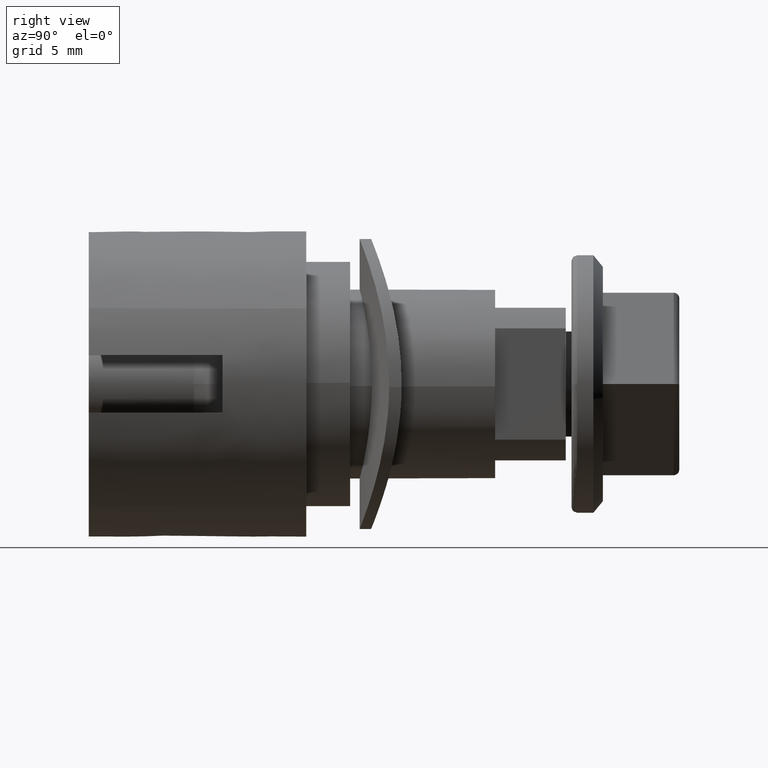
[diagram: clean part render]
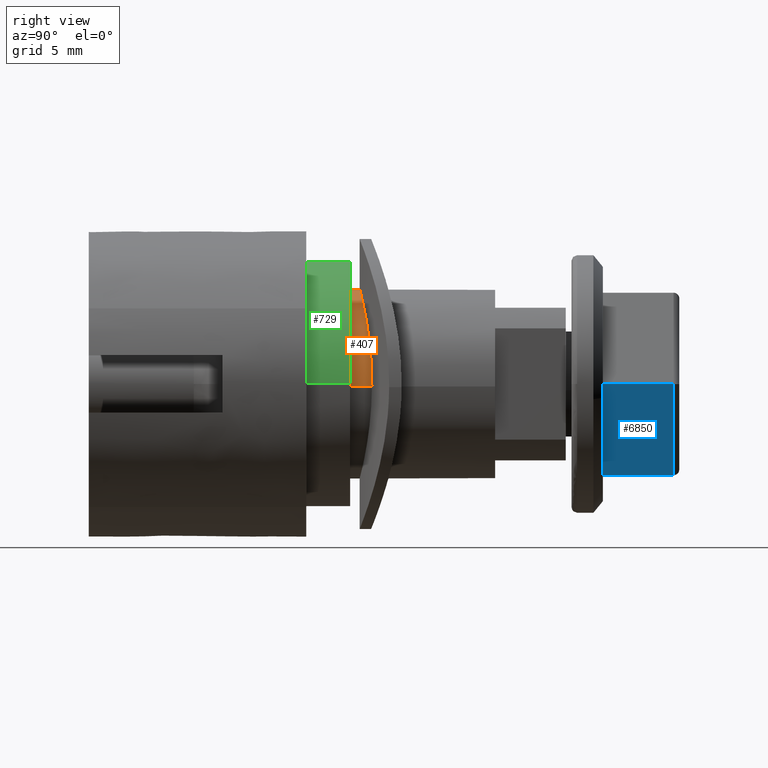
[diagram: same view with three faces highlighted in distinct colors, each labeled with its STEP entity id]
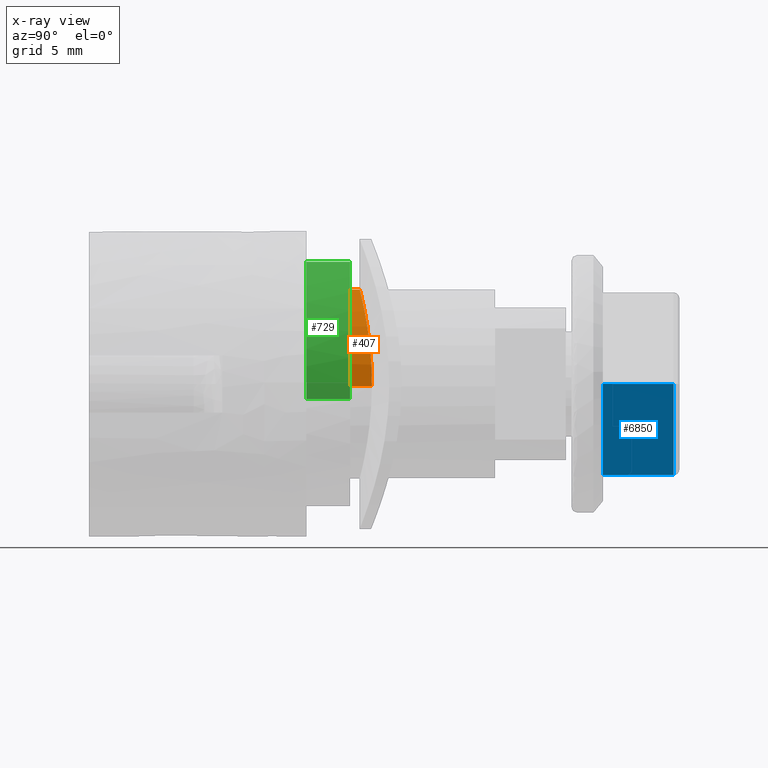
[diagram: x-ray of the same camera — body ghosted, the three highlighted faces saturated]
A machine part, right view with three faces highlighted in distinct colors.
The next image is the same camera in x-ray (body ghosted, the three faces saturated) — at least one of them is partly hidden behind the body in this view.
Their STEP definitions:

[orange] entity #407 — the highlighted face is a freeform B-spline surface patch.
#258=CARTESIAN_POINT('',(4.947387771196677,7.868939549934340,-0.175296875665200));
#259=CARTESIAN_POINT('',(4.948129703315320,7.868939549934340,-0.140496282237373));
#260=CARTESIAN_POINT('',(5.048512182358194,7.868939549934341,4.567980076545630));
#261=CARTESIAN_POINT('',(0.388372539787553,7.868939549934340,4.934741020457006));
#262=CARTESIAN_POINT('',(-4.546368464661252,7.868939549934342,5.323113560244558));
#263=CARTESIAN_POINT('',(-4.937424855956874,7.868939549934344,0.354270989052777));
#264=CARTESIAN_POINT('',(-4.940093386666383,7.868939549934337,0.320364091512918));
#265=CARTESIAN_POINT('',(4.947387771196677,6.670777023206771,-0.175296875665200));
#266=CARTESIAN_POINT('',(4.948129703315320,6.670777023206772,-0.140496282237373));
#267=CARTESIAN_POINT('',(5.048512182358194,6.670777023206771,4.567980076545630));
#268=CARTESIAN_POINT('',(0.388372539787553,6.670777023206771,4.934741020457006));
#269=CARTESIAN_POINT('',(-4.546368464661252,6.670777023206771,5.323113560244558));
#270=CARTESIAN_POINT('',(-4.937424855956874,6.670777023206775,0.354270989052777));
#271=CARTESIAN_POINT('',(-4.940093386666383,6.670777023206769,0.320364091512918));
#279=(BOUNDED_SURFACE()B_SPLINE_SURFACE(2,1,((#258,#265),(#259,#266),(#260,#267),(#261,#268),(#262,#269),(#263,#270),(#264,#271)),.UNSPECIFIED.,.F.,.F.,.U.)B_SPLINE_SURFACE_WITH_KNOTS((3,1,2,1,3),(2,2),(0.0,0.080374041516822,7.953745758144900,16.155174629632480,16.235556740622279),(0.0,1.0),.UNSPECIFIED.)GEOMETRIC_REPRESENTATION_ITEM()RATIONAL_B_SPLINE_SURFACE(((0.982787253851652,0.982787253851652),(0.980146527323389,0.980146527323389),(0.718822509939086,0.718822509939086),(1.0,1.0),(0.707106781186548,0.707106781186548),(1.002870643102773,1.002870643102773),(1.005741286205547,1.005741286205547)))REPRESENTATION_ITEM('')SURFACE());
#280=CARTESIAN_POINT('',(4.948879751987990,7.840132820452007,-0.105507748582724));
#281=VERTEX_POINT('',#280);
#282=CARTESIAN_POINT('',(0.002099551626332,7.200001162218512,4.949999773839753));
#283=VERTEX_POINT('',#282);
#284=CARTESIAN_POINT('',(4.948879751987990,7.840132820452007,-0.105507748582724));
#285=CARTESIAN_POINT('',(4.949601862319679,7.840324160573502,-0.071410620996152));
#286=CARTESIAN_POINT('',(4.949973454942120,7.840422905422813,-0.037288477874072));
#287=CARTESIAN_POINT('',(4.950098117702120,7.840455690884396,0.159015733453871));
#288=CARTESIAN_POINT('',(4.942254124892306,7.838385777116133,0.321739933449679));
#289=CARTESIAN_POINT('',(4.910093685302143,7.829965805465504,0.648362697134754));
#290=CARTESIAN_POINT('',(4.886013491991342,7.823678608873326,0.809703603519524));
#291=CARTESIAN_POINT('',(4.790837928010884,7.799148572079519,1.286649987823281));
#292=CARTESIAN_POINT('',(4.696965241709910,7.775218054186232,1.595873352656662));
#293=CARTESIAN_POINT('',(4.541184167453957,7.737540816707886,1.971480312491870));
#294=CARTESIAN_POINT('',(4.507988822195961,7.729594045347338,2.046252956049082));
#295=CARTESIAN_POINT('',(4.438197375441896,7.713101369639995,2.193517648142008));
#296=CARTESIAN_POINT('',(4.401629043436438,7.704561513700611,2.265984609877945));
#297=CARTESIAN_POINT('',(4.287004778093002,7.678174025103234,2.479971661030763));
#298=CARTESIAN_POINT('',(4.204041901197334,7.659559192280666,2.618086297819789));
#299=CARTESIAN_POINT('',(4.025234030032119,7.620856476404650,2.885452759873463));
#300=CARTESIAN_POINT('',(3.929388900054450,7.600767680173651,3.014704363250560));
#301=CARTESIAN_POINT('',(3.775821113349411,7.569948958945916,3.201901664707152));
#302=CARTESIAN_POINT('',(3.722995445215187,7.559561783500366,3.263185359269615));
#303=CARTESIAN_POINT('',(3.614009628172497,7.538630042647959,3.383490704675788));
#304=CARTESIAN_POINT('',(3.557788133209711,7.528075808192384,3.442556871702676));
#305=CARTESIAN_POINT('',(3.271315525352431,7.475662300544934,3.729081595186396));
#306=CARTESIAN_POINT('',(3.022908787332392,7.434447054410257,3.932959357331786));
#307=CARTESIAN_POINT('',(2.621717572384286,7.377031855620355,4.201786020410382));
#308=CARTESIAN_POINT('',(2.483188789472399,7.358625503457627,4.285183185626472));
#309=CARTESIAN_POINT('',(2.267901018691166,7.332538835441519,4.400653759099920));
#310=CARTESIAN_POINT('',(2.194920688259193,7.324104601097399,4.437501849991760));
#311=CARTESIAN_POINT('',(2.048097483258126,7.307993719176277,4.507149528309946));
#312=CARTESIAN_POINT('',(1.974052492145117,7.300291926250091,4.540060984361574));
#313=CARTESIAN_POINT('',(1.600697426720374,7.263656965753866,4.695197875366080));
#314=CARTESIAN_POINT('',(1.292085198202387,7.240341267882218,4.789439093904703));
#315=CARTESIAN_POINT('',(0.893605354158535,7.220375830194301,4.869350870999478));
#316=CARTESIAN_POINT('',(0.813268087728567,7.216842176885724,4.883421290284169));
#317=CARTESIAN_POINT('',(0.651279984784909,7.210739146959072,4.907651481231377));
#318=CARTESIAN_POINT('',(0.569789382258632,7.208179159830097,4.917774027596916));
#319=CARTESIAN_POINT('',(0.326169802218242,7.202057513303578,4.941938173106622));
#320=CARTESIAN_POINT('',(0.164010637635556,7.200018641400861,4.949931100305132));
#321=CARTESIAN_POINT('',(0.002099551626332,7.200001162218512,4.949999773839753));
#322=B_SPLINE_CURVE_WITH_KNOTS('',3,(#284,#285,#286,#287,#288,#289,#290,#291,#292,#293,#294,#295,#296,#297,#298,#299,#300,#301,#302,#303,#304,#305,#306,#307,#308,#309,#310,#311,#312,#313,#314,#315,#316,#317,#318,#319,#320,#321),.UNSPECIFIED.,.F.,.U.,(4,2,2,2,2,2,2,2,2,2,2,2,2,2,2,2,2,2,4),(0.246709679165166,0.250000000000001,0.265625000000001,0.281250000000001,0.312500000000001,0.320312500000001,0.328125000000001,0.343750000000001,0.359375000000001,0.367187500000001,0.375000000000001,0.406250000000001,0.421875000000001,0.429687500000001,0.437500000000001,0.468750000000001,0.476562500000001,0.484375000000001,0.500000000000001),.UNSPECIFIED.);
#323=EDGE_CURVE('',#281,#283,#322,.T.);
#324=ORIENTED_EDGE('',*,*,#323,.T.);
#325=CARTESIAN_POINT('',(-4.934741098341358,7.836418882127584,0.388372938903500));
#326=VERTEX_POINT('',#325);
#327=CARTESIAN_POINT('',(0.002099551626332,7.200001162218512,4.949999773839753));
#328=CARTESIAN_POINT('',(-0.321722750913437,7.199966203853812,4.950137123673125));
#329=CARTESIAN_POINT('',(-0.644658160705429,7.208018809588152,4.918792553151810));
#330=CARTESIAN_POINT('',(-1.288089745738943,7.240027245598429,4.790712799566194));
#331=CARTESIAN_POINT('',(-1.597715574350277,7.263418499811168,4.696170594935985));
#332=CARTESIAN_POINT('',(-2.045016128535393,7.307228355698178,4.510705485526721));
#333=CARTESIAN_POINT('',(-2.191238548667237,7.323288657777392,4.441552155562917));
#334=CARTESIAN_POINT('',(-2.406191540145268,7.349276859633664,4.326586051961667));
#335=CARTESIAN_POINT('',(-2.477297040289675,7.358281291690729,4.286270727466011));
#336=CARTESIAN_POINT('',(-2.616778188156526,7.376705429063337,4.202569367216728));
#337=CARTESIAN_POINT('',(-2.685211264449800,7.386129525532037,4.159167065015772));
#338=CARTESIAN_POINT('',(-3.020985080075898,7.434127810735898,3.934539405399560));
#339=CARTESIAN_POINT('',(-3.269340270393432,7.475334854589439,3.730695990337068));
#340=CARTESIAN_POINT('',(-3.554825146024256,7.527524921007948,3.445610441928127));
#341=CARTESIAN_POINT('',(-3.610662391892799,7.537996719210907,3.387064866157396));
#342=CARTESIAN_POINT('',(-3.719778424128601,7.558933995789517,3.266854723939450));
#343=CARTESIAN_POINT('',(-3.773086804766124,7.569406807441609,3.205134434454368));
#344=CARTESIAN_POINT('',(-3.927445790248526,7.600363456929326,3.017274653681198));
#345=CARTESIAN_POINT('',(-4.023545252889671,7.620498390536008,2.887809650395563));
#346=CARTESIAN_POINT('',(-4.291965480707600,7.678573538124128,2.486959972765037));
#347=CARTESIAN_POINT('',(-4.444612335199641,7.714200141035096,2.203247546031218));
#348=CARTESIAN_POINT('',(-4.601276259921645,7.752069796951671,1.826857240974886));
#349=CARTESIAN_POINT('',(-4.630864588589023,7.759304754381345,1.750490963458138));
#350=CARTESIAN_POINT('',(-4.685906638148247,7.772882822698932,1.597311624151760));
#351=CARTESIAN_POINT('',(-4.711454748460087,7.779248637109814,1.520281029723186));
#352=CARTESIAN_POINT('',(-4.782268702244913,7.797022885629674,1.287882331042392));
#353=CARTESIAN_POINT('',(-4.861167614613474,7.817193053037115,0.974538206123376));
#354=CARTESIAN_POINT('',(-4.909269666996092,7.829749663766742,0.654257274643529));
#355=CARTESIAN_POINT('',(-4.928910614927249,7.834891058429175,0.457765754134931));
#356=CARTESIAN_POINT('',(-4.932007267727460,7.835702625774626,0.423110518168883));
#357=CARTESIAN_POINT('',(-4.934741098341358,7.836418882127584,0.388372938903500));
#358=B_SPLINE_CURVE_WITH_KNOTS('',3,(#327,#328,#329,#330,#331,#332,#333,#334,#335,#336,#337,#338,#339,#340,#341,#342,#343,#344,#345,#346,#347,#348,#349,#350,#351,#352,#353,#354,#355,#356,#357),.UNSPECIFIED.,.F.,.U.,(4,2,2,2,2,2,2,2,2,2,2,2,2,1,2,4),(0.500000000000001,0.531250000000001,0.562500000000001,0.578125000000001,0.585937500000001,0.593750000000001,0.625000000000000,0.632812500000000,0.640625000000000,0.656250000000000,0.687500000000000,0.695312500000000,0.703125000000000,0.718750000000000,0.734375000000000,0.737711390997194),.UNSPECIFIED.);
#359=EDGE_CURVE('',#283,#326,#358,.T.);
#360=ORIENTED_EDGE('',*,*,#359,.T.);
#361=CARTESIAN_POINT('',(-4.934741544845656,6.700000499468420,0.388365689280583));
#362=VERTEX_POINT('',#361);
#363=CARTESIAN_POINT('',(-4.934741098341358,7.836418882127584,0.388372938903500));
#364=CARTESIAN_POINT('',(-4.934741544845656,6.700000499468420,0.388365689280583));
#365=QUASI_UNIFORM_CURVE('',1,(#363,#364),.UNSPECIFIED.,.F.,.U.);
#366=EDGE_CURVE('',#326,#362,#365,.T.);
#367=ORIENTED_EDGE('',*,*,#366,.T.);
#368=CARTESIAN_POINT('',(0.0,6.700000499468420,4.950000219104100));
#369=VERTEX_POINT('',#368);
#370=CARTESIAN_POINT('',(0.0,6.700000499468420,4.950000219104100));
#371=CARTESIAN_POINT('',(-4.575739508107957,6.700000499468420,4.950000219104099));
#372=CARTESIAN_POINT('',(-4.934741544845656,6.700000499468420,0.388365689280582));
#380=(BOUNDED_CURVE()B_SPLINE_CURVE(2,(#370,#371,#372),.UNSPECIFIED.,.F.,.U.)B_SPLINE_CURVE_WITH_KNOTS((3,3),(0.500000000000000,0.736331539163834),.UNSPECIFIED.)CURVE()GEOMETRIC_REPRESENTATION_ITEM()RATIONAL_B_SPLINE_CURVE((1.0,0.723120379148669,0.969723853968488))REPRESENTATION_ITEM(''));
#381=EDGE_CURVE('',#369,#362,#380,.T.);
#382=ORIENTED_EDGE('',*,*,#381,.F.);
#383=CARTESIAN_POINT('',(4.948875644084547,6.700000499468419,-0.105507661609170));
#384=VERTEX_POINT('',#383);
#385=CARTESIAN_POINT('',(4.948875644084547,6.700000499468419,-0.105507661609170));
#386=CARTESIAN_POINT('',(4.950000203095901,6.700000499468420,-0.052759815896507));
#387=CARTESIAN_POINT('',(4.950000203095900,6.700000499468420,0.000000016008201));
#388=CARTESIAN_POINT('',(4.950000203095900,6.700000499468420,4.950000219104100));
#389=CARTESIAN_POINT('',(0.0,6.700000499468420,4.950000219104100));
#397=(BOUNDED_CURVE()B_SPLINE_CURVE(2,(#385,#386,#387,#388,#389),.UNSPECIFIED.,.F.,.U.)B_SPLINE_CURVE_WITH_KNOTS((3,2,3),(0.246248196889300,0.250000000000000,0.500000000000000),.UNSPECIFIED.)CURVE()GEOMETRIC_REPRESENTATION_ITEM()RATIONAL_B_SPLINE_CURVE((0.991340907211896,0.995604489242211,1.0,0.707106781186547,1.0))REPRESENTATION_ITEM(''));
#398=EDGE_CURVE('',#384,#369,#397,.T.);
#399=ORIENTED_EDGE('',*,*,#398,.F.);
#400=CARTESIAN_POINT('',(4.948879751987990,7.840132820452007,-0.105507748582724));
#401=CARTESIAN_POINT('',(4.948875644084547,6.700000499468419,-0.105507661609170));
#402=QUASI_UNIFORM_CURVE('',1,(#400,#401),.UNSPECIFIED.,.F.,.U.);
#403=EDGE_CURVE('',#281,#384,#402,.T.);
#404=ORIENTED_EDGE('',*,*,#403,.F.);
#405=EDGE_LOOP('',(#324,#360,#367,#382,#399,#404));
#406=FACE_OUTER_BOUND('',#405,.T.);
#407=ADVANCED_FACE('',(#406),#279,.T.);

[blue] entity #6850 — the highlighted face is a freeform B-spline surface patch.
#4330=CARTESIAN_POINT('',(5.525000262423791,23.650001328298998,-1.989520E-013));
#4331=VERTEX_POINT('',#4330);
#4561=CARTESIAN_POINT('',(2.762500131212080,23.650001328298998,-4.784790583174329));
#4562=VERTEX_POINT('',#4561);
#4584=CARTESIAN_POINT('',(2.762500131212080,23.650001328298998,-4.784790583174329));
#4585=CARTESIAN_POINT('',(5.525000262423791,23.650001328298998,-1.989520E-013));
#4586=QUASI_UNIFORM_CURVE('',1,(#4584,#4585),.UNSPECIFIED.,.F.,.U.);
#4587=EDGE_CURVE('',#4562,#4331,#4586,.T.);
#6806=CARTESIAN_POINT('',(5.525000262423791,19.950001138309052,-1.989520E-013));
#6807=VERTEX_POINT('',#6806);
#6808=CARTESIAN_POINT('',(5.525000262423791,23.650001328298998,-1.989520E-013));
#6809=CARTESIAN_POINT('',(5.525000262423791,19.950001138309052,-1.989520E-013));
#6810=QUASI_UNIFORM_CURVE('',1,(#6808,#6809),.UNSPECIFIED.,.F.,.U.);
#6811=EDGE_CURVE('',#4331,#6807,#6810,.T.);
#6829=CARTESIAN_POINT('',(5.662987112691178,19.765185719194921,0.239000235439306));
#6830=CARTESIAN_POINT('',(2.624513182149989,19.765185719194921,-5.023790989731279));
#6831=CARTESIAN_POINT('',(5.662987112691178,23.834816449687910,0.239000235439306));
#6832=CARTESIAN_POINT('',(2.624513182149989,23.834816449687910,-5.023790989731279));
#6833=B_SPLINE_SURFACE_WITH_KNOTS('',1,1,((#6829,#6831),(#6830,#6832)),.UNSPECIFIED.,.F.,.F.,.U.,(2,2),(2,2),(0.0,6.076947861082151),(0.0,4.069630730492992),.UNSPECIFIED.);
#6834=CARTESIAN_POINT('',(2.762500131212080,19.950001138309052,-4.784790583174329));
#6835=VERTEX_POINT('',#6834);
#6836=CARTESIAN_POINT('',(2.762500131212080,23.650001328298998,-4.784790583174329));
#6837=CARTESIAN_POINT('',(2.762500131212080,19.950001138309052,-4.784790583174329));
#6838=QUASI_UNIFORM_CURVE('',1,(#6836,#6837),.UNSPECIFIED.,.F.,.U.);
#6839=EDGE_CURVE('',#4562,#6835,#6838,.T.);
#6840=ORIENTED_EDGE('',*,*,#6839,.F.);
#6841=ORIENTED_EDGE('',*,*,#4587,.T.);
#6842=ORIENTED_EDGE('',*,*,#6811,.T.);
#6843=CARTESIAN_POINT('',(2.762500131212080,19.950001138309052,-4.784790583174329));
#6844=CARTESIAN_POINT('',(5.525000262423791,19.950001138309052,-1.989520E-013));
#6845=QUASI_UNIFORM_CURVE('',1,(#6843,#6844),.UNSPECIFIED.,.F.,.U.);
#6846=EDGE_CURVE('',#6835,#6807,#6845,.T.);
#6847=ORIENTED_EDGE('',*,*,#6846,.F.);
#6848=EDGE_LOOP('',(#6840,#6841,#6842,#6847));
#6849=FACE_OUTER_BOUND('',#6848,.T.);
#6850=ADVANCED_FACE('',(#6849),#6833,.T.);

[green] entity #729 — the highlighted face is a freeform B-spline surface patch.
#562=CARTESIAN_POINT('',(-6.350505023726593,6.700000499468267,-0.794411353963616));
#563=VERTEX_POINT('',#562);
#579=CARTESIAN_POINT('',(6.399756611642085,6.700000499468369,0.055846169950365));
#580=VERTEX_POINT('',#579);
#596=CARTESIAN_POINT('',(6.399756615722939,4.400000210000000,0.055845702265241));
#597=VERTEX_POINT('',#596);
#598=CARTESIAN_POINT('',(6.399756611642085,6.700000499468369,0.055846169950365));
#599=CARTESIAN_POINT('',(6.399756615722939,4.400000210000000,0.055845702265241));
#600=QUASI_UNIFORM_CURVE('',1,(#598,#599),.UNSPECIFIED.,.F.,.U.);
#601=EDGE_CURVE('',#580,#597,#600,.T.);
#620=CARTESIAN_POINT('',(-6.350505149259178,4.400000210000000,-0.794410350447820));
#621=VERTEX_POINT('',#620);
#635=CARTESIAN_POINT('',(-6.350505023726593,6.700000499468267,-0.794411353963616));
#636=CARTESIAN_POINT('',(-6.350505149259178,4.400000210000000,-0.794410350447820));
#637=QUASI_UNIFORM_CURVE('',1,(#635,#636),.UNSPECIFIED.,.F.,.U.);
#638=EDGE_CURVE('',#563,#621,#637,.T.);
#643=CARTESIAN_POINT('',(6.399756579567538,6.757500506705132,0.055849845571125));
#644=CARTESIAN_POINT('',(6.343906750004614,6.757500506705132,6.455606425138663));
#645=CARTESIAN_POINT('',(-0.055849829562924,6.757500506705132,6.399756595575739));
#646=CARTESIAN_POINT('',(-6.455606409130462,6.757500506705132,6.343906766012815));
#647=CARTESIAN_POINT('',(-6.399756579567538,6.757500506705132,-0.055849813554723));
#648=CARTESIAN_POINT('',(-6.396521431885130,6.757500506705131,-0.426561019450767));
#649=CARTESIAN_POINT('',(-6.350504038347310,6.757500506705131,-0.794419231061452));
#650=CARTESIAN_POINT('',(6.399756579567538,4.341062702582370,0.055849845571125));
#651=CARTESIAN_POINT('',(6.343906750004614,4.341062702582371,6.455606425138663));
#652=CARTESIAN_POINT('',(-0.055849829562924,4.341062702582370,6.399756595575739));
#653=CARTESIAN_POINT('',(-6.455606409130462,4.341062702582371,6.343906766012815));
#654=CARTESIAN_POINT('',(-6.399756579567538,4.341062702582370,-0.055849813554723));
#655=CARTESIAN_POINT('',(-6.396521431885130,4.341062702582370,-0.426561019450767));
#656=CARTESIAN_POINT('',(-6.350504038347310,4.341062702582370,-0.794419231061452));
#664=(BOUNDED_SURFACE()B_SPLINE_SURFACE(2,1,((#643,#650),(#644,#651),(#645,#652),(#646,#653),(#647,#654),(#648,#655),(#649,#656)),.UNSPECIFIED.,.F.,.F.,.U.)B_SPLINE_SURFACE_WITH_KNOTS((3,2,2,3),(2,2),(0.0,10.603867647361239,21.207735294722479,22.056044706511379),(0.0,2.416437804122762),.UNSPECIFIED.)GEOMETRIC_REPRESENTATION_ITEM()RATIONAL_B_SPLINE_SURFACE(((1.0,1.0),(0.707106781186548,0.707106781186548),(1.0,1.0),(0.707106781186548,0.707106781186548),(1.0,1.0),(0.976568542494924,0.976568542494924),(0.956886118190660,0.956886118190660)))REPRESENTATION_ITEM('')SURFACE());
#665=CARTESIAN_POINT('',(0.0,6.700000499468420,6.400000287975401));
#666=VERTEX_POINT('',#665);
#667=CARTESIAN_POINT('',(0.0,6.700000499468420,6.400000287975401));
#668=CARTESIAN_POINT('',(-6.400000271967200,6.700000499468419,6.400000287975400));
#669=CARTESIAN_POINT('',(-6.400000271967200,6.700000499468420,0.000000016008201));
#670=CARTESIAN_POINT('',(-6.400000271967200,6.700000499468420,-0.398747552497380));
#671=CARTESIAN_POINT('',(-6.350505023726593,6.700000499468267,-0.794411353963616));
#679=(BOUNDED_CURVE()B_SPLINE_CURVE(2,(#667,#668,#669,#670,#671),.UNSPECIFIED.,.F.,.U.)B_SPLINE_CURVE_WITH_KNOTS((3,2,3),(0.500000000000000,0.750000000000000,0.771473719784070),.UNSPECIFIED.)CURVE()GEOMETRIC_REPRESENTATION_ITEM()RATIONAL_B_SPLINE_CURVE((1.0,0.707106781186548,1.0,0.974841972370182,0.954005836225505))REPRESENTATION_ITEM(''));
#680=EDGE_CURVE('',#666,#563,#679,.T.);
#681=ORIENTED_EDGE('',*,*,#680,.T.);
#682=ORIENTED_EDGE('',*,*,#638,.T.);
#683=CARTESIAN_POINT('',(0.0,4.400000210000000,6.400000287975401));
#684=VERTEX_POINT('',#683);
#685=CARTESIAN_POINT('',(-6.350505149259178,4.400000210000000,-0.794410350447820));
#686=CARTESIAN_POINT('',(-6.400000271967200,4.400000210000001,-0.398747044866000));
#687=CARTESIAN_POINT('',(-6.400000271967200,4.400000210000000,0.000000016008201));
#688=CARTESIAN_POINT('',(-6.400000271967200,4.400000209999999,6.400000287975400));
#689=CARTESIAN_POINT('',(0.0,4.400000210000000,6.400000287975401));
#697=(BOUNDED_CURVE()B_SPLINE_CURVE(2,(#685,#686,#687,#688,#689),.UNSPECIFIED.,.F.,.U.)B_SPLINE_CURVE_WITH_KNOTS((3,2,3),(0.728526306865605,0.750000000000000,1.0),.UNSPECIFIED.)CURVE()GEOMETRIC_REPRESENTATION_ITEM()RATIONAL_B_SPLINE_CURVE((0.954005887942334,0.974842003592219,1.0,0.707106781186548,1.0))REPRESENTATION_ITEM(''));
#698=EDGE_CURVE('',#621,#684,#697,.T.);
#699=ORIENTED_EDGE('',*,*,#698,.T.);
#700=CARTESIAN_POINT('',(0.0,4.400000210000000,6.400000287975401));
#701=CARTESIAN_POINT('',(6.344396125031666,4.400000209999999,6.400000287975402));
#702=CARTESIAN_POINT('',(6.399756615722939,4.400000210000000,0.055845702265241));
#710=(BOUNDED_CURVE()B_SPLINE_CURVE(2,(#700,#701,#702),.UNSPECIFIED.,.F.,.U.)B_SPLINE_CURVE_WITH_KNOTS((3,3),(0.0,0.248460219702711),.UNSPECIFIED.)CURVE()GEOMETRIC_REPRESENTATION_ITEM()RATIONAL_B_SPLINE_CURVE((1.0,0.708910746016702,0.996414292015710))REPRESENTATION_ITEM(''));
#711=EDGE_CURVE('',#684,#597,#710,.T.);
#712=ORIENTED_EDGE('',*,*,#711,.T.);
#713=ORIENTED_EDGE('',*,*,#601,.F.);
#714=CARTESIAN_POINT('',(6.399756611642085,6.700000499468369,0.055846169950365));
#715=CARTESIAN_POINT('',(6.344395661374576,6.700000499468420,6.400000287975402));
#716=CARTESIAN_POINT('',(0.0,6.700000499468420,6.400000287975401));
#724=(BOUNDED_CURVE()B_SPLINE_CURVE(2,(#714,#715,#716),.UNSPECIFIED.,.F.,.U.)B_SPLINE_CURVE_WITH_KNOTS((3,3),(0.251539793169557,0.500000000000000),.UNSPECIFIED.)CURVE()GEOMETRIC_REPRESENTATION_ITEM()RATIONAL_B_SPLINE_CURVE((0.996414262225652,0.708910761097501,1.0))REPRESENTATION_ITEM(''));
#725=EDGE_CURVE('',#580,#666,#724,.T.);
#726=ORIENTED_EDGE('',*,*,#725,.T.);
#727=EDGE_LOOP('',(#681,#682,#699,#712,#713,#726));
#728=FACE_OUTER_BOUND('',#727,.T.);
#729=ADVANCED_FACE('',(#728),#664,.T.);